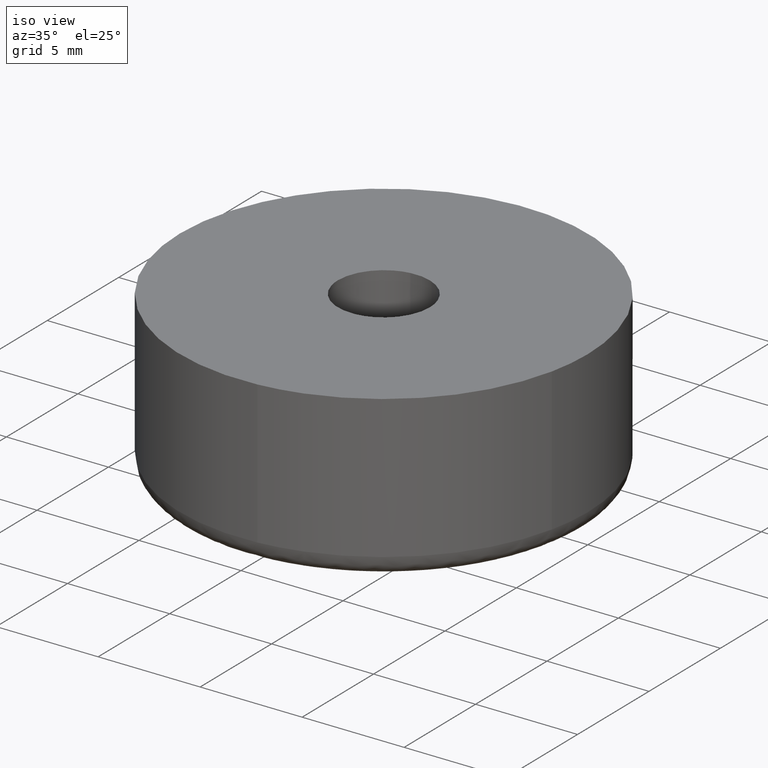
[diagram: clean part render]
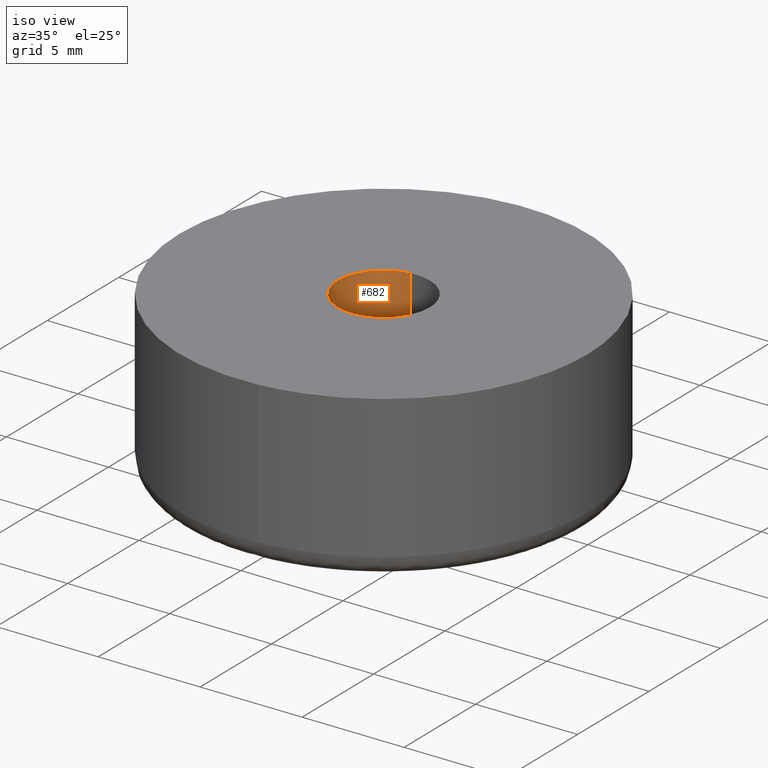
[diagram: same view with one face highlighted and labeled with its STEP entity id]
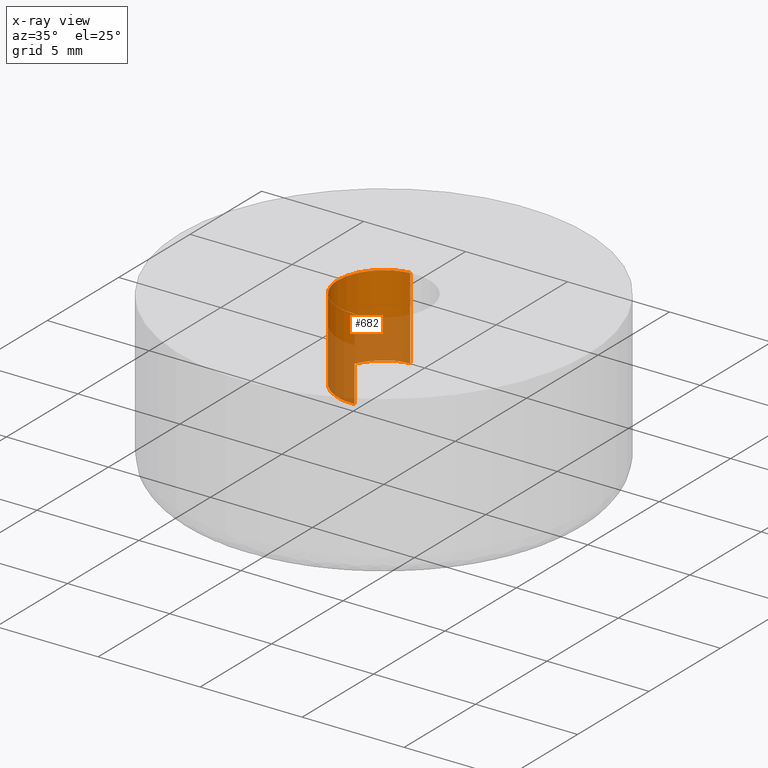
[diagram: x-ray of the same camera — body ghosted, the highlighted face saturated]
A machine part, iso view. The second image highlights one B-rep face of the part: STEP entity #682.
The next image is the same camera in x-ray: the body ghosted, the highlighted face saturated — about 50% of this face is hidden behind the body in this view.
In plain terms, the highlighted face is a freeform B-spline surface patch.
Its self-contained STEP definition (entity closure, byte-faithful):
#515=CARTESIAN_POINT('',(-0.265572896532508,2.234271925395390,3.999999999999945));
#516=VERTEX_POINT('',#515);
#534=CARTESIAN_POINT('',(0.137359213972935,-2.245803296448007,3.999999999999901));
#535=VERTEX_POINT('',#534);
#549=CARTESIAN_POINT('',(0.137359213972935,-2.245803296448007,7.999999999999899));
#550=VERTEX_POINT('',#549);
#551=CARTESIAN_POINT('',(0.137359213972935,-2.245803296448007,7.999999999999899));
#552=CARTESIAN_POINT('',(0.137359213972935,-2.245803296448007,3.999999999999901));
#553=QUASI_UNIFORM_CURVE('',1,(#551,#552),.UNSPECIFIED.,.F.,.U.);
#554=EDGE_CURVE('',#550,#535,#553,.T.);
#571=CARTESIAN_POINT('',(-0.265572947441810,2.234271919344237,7.999999999999899));
#572=VERTEX_POINT('',#571);
#588=CARTESIAN_POINT('',(-0.265572947441810,2.234271919344237,7.999999999999899));
#589=CARTESIAN_POINT('',(-0.265572896532508,2.234271925395390,3.999999999999945));
#590=QUASI_UNIFORM_CURVE('',1,(#588,#589),.UNSPECIFIED.,.F.,.U.);
#591=EDGE_CURVE('',#572,#516,#590,.T.);
#596=CARTESIAN_POINT('',(0.168306818038514,-2.243910459895977,8.099999999999902));
#597=CARTESIAN_POINT('',(0.152877304183671,-2.244854169390986,8.099999999999900));
#598=CARTESIAN_POINT('',(-2.108444082495772,-2.383162510402629,8.099999999999900));
#599=CARTESIAN_POINT('',(-2.245803296449200,-0.137359213953428,8.099999999999900));
#600=CARTESIAN_POINT('',(-2.375518942648186,1.983472854388877,8.099999999999900));
#601=CARTESIAN_POINT('',(-0.249778640438207,2.236149312155801,8.099999999999900));
#602=CARTESIAN_POINT('',(-0.234065163725353,2.238017097054492,8.099999999999900));
#603=CARTESIAN_POINT('',(0.168306818038514,-2.243910459895977,3.897499999999901));
#604=CARTESIAN_POINT('',(0.152877304183671,-2.244854169390986,3.897499999999901));
#605=CARTESIAN_POINT('',(-2.108444082495772,-2.383162510402629,3.897499999999901));
#606=CARTESIAN_POINT('',(-2.245803296449200,-0.137359213953428,3.897499999999901));
#607=CARTESIAN_POINT('',(-2.375518942648186,1.983472854388877,3.897499999999900));
#608=CARTESIAN_POINT('',(-0.249778640438207,2.236149312155801,3.897499999999901));
#609=CARTESIAN_POINT('',(-0.234065163725353,2.238017097054492,3.897499999999901));
#617=(BOUNDED_SURFACE()B_SPLINE_SURFACE(2,1,((#596,#603),(#597,#604),(#598,#605),(#599,#606),(#600,#607),(#601,#608),(#602,#609)),.UNSPECIFIED.,.F.,.F.,.U.)B_SPLINE_SURFACE_WITH_KNOTS((3,1,2,1,3),(2,2),(0.0,0.036533659231314,3.764455720589168,7.343260899492709,7.379799323418520),(0.0,4.202500000000000),.UNSPECIFIED.)GEOMETRIC_REPRESENTATION_ITEM()RATIONAL_B_SPLINE_SURFACE(((1.005740710707560,1.005740710707560),(1.002870355353780,1.002870355353780),(0.707106781186548,0.707106781186548),(1.0,1.0),(0.718822509939086,0.718822509939086),(0.980146872122378,0.980146872122378),(0.982787943449630,0.982787943449630)))REPRESENTATION_ITEM('')SURFACE());
#618=CARTESIAN_POINT('',(-2.250000000000000,0.0,3.999999999999901));
#619=VERTEX_POINT('',#618);
#620=CARTESIAN_POINT('',(-2.250000000000000,0.0,3.999999999999901));
#621=CARTESIAN_POINT('',(-2.250000000000000,1.998396404682503,3.999999999999901));
#622=CARTESIAN_POINT('',(-0.265572896532508,2.234271925395390,3.999999999999945));
#630=(BOUNDED_CURVE()B_SPLINE_CURVE(2,(#620,#621,#622),.UNSPECIFIED.,.F.,.U.)B_SPLINE_CURVE_WITH_KNOTS((3,3),(0.0,0.229562786023662),.UNSPECIFIED.)CURVE()GEOMETRIC_REPRESENTATION_ITEM()RATIONAL_B_SPLINE_CURVE((1.0,0.731050466726983,0.956027366717305))REPRESENTATION_ITEM(''));
#631=EDGE_CURVE('',#619,#516,#630,.T.);
#632=ORIENTED_EDGE('',*,*,#631,.T.);
#633=ORIENTED_EDGE('',*,*,#591,.F.);
#634=CARTESIAN_POINT('',(-2.250000000000000,0.0,7.999999999999900));
#635=VERTEX_POINT('',#634);
#636=CARTESIAN_POINT('',(-2.250000000000000,0.0,7.999999999999900));
#637=CARTESIAN_POINT('',(-2.250000000000000,1.998396358827245,7.999999999999899));
#638=CARTESIAN_POINT('',(-0.265572947441810,2.234271919344238,7.999999999999899));
#646=(BOUNDED_CURVE()B_SPLINE_CURVE(2,(#636,#637,#638),.UNSPECIFIED.,.F.,.U.)B_SPLINE_CURVE_WITH_KNOTS((3,3),(0.0,0.229562782172814),.UNSPECIFIED.)CURVE()GEOMETRIC_REPRESENTATION_ITEM()RATIONAL_B_SPLINE_CURVE((1.0,0.731050471238532,0.956027359169463))REPRESENTATION_ITEM(''));
#647=EDGE_CURVE('',#635,#572,#646,.T.);
#648=ORIENTED_EDGE('',*,*,#647,.F.);
#649=CARTESIAN_POINT('',(0.137359213972935,-2.245803296448008,7.999999999999900));
#650=CARTESIAN_POINT('',(0.068743717441387,-2.250000000000000,7.999999999999901));
#651=CARTESIAN_POINT('',(0.0,-2.250000000000000,7.999999999999900));
#652=CARTESIAN_POINT('',(-2.250000000000000,-2.250000000000000,7.999999999999900));
#653=CARTESIAN_POINT('',(-2.250000000000000,0.0,7.999999999999900));
#661=(BOUNDED_CURVE()B_SPLINE_CURVE(2,(#649,#650,#651,#652,#653),.UNSPECIFIED.,.F.,.U.)B_SPLINE_CURVE_WITH_KNOTS((3,2,3),(0.739332962238971,0.750000000000000,1.0),.UNSPECIFIED.)CURVE()GEOMETRIC_REPRESENTATION_ITEM()RATIONAL_B_SPLINE_CURVE((0.976072041666778,0.987502787899870,1.0,0.707106781186547,1.0))REPRESENTATION_ITEM(''));
#662=EDGE_CURVE('',#550,#635,#661,.T.);
#663=ORIENTED_EDGE('',*,*,#662,.F.);
#664=ORIENTED_EDGE('',*,*,#554,.T.);
#665=CARTESIAN_POINT('',(0.137359213972935,-2.245803296448008,3.999999999999900));
#666=CARTESIAN_POINT('',(0.068743717441387,-2.250000000000000,3.999999999999900));
#667=CARTESIAN_POINT('',(0.0,-2.250000000000000,3.999999999999901));
#668=CARTESIAN_POINT('',(-2.250000000000000,-2.250000000000000,3.999999999999901));
#669=CARTESIAN_POINT('',(-2.250000000000000,0.0,3.999999999999901));
#677=(BOUNDED_CURVE()B_SPLINE_CURVE(2,(#665,#666,#667,#668,#669),.UNSPECIFIED.,.F.,.U.)B_SPLINE_CURVE_WITH_KNOTS((3,2,3),(0.739332962238971,0.750000000000000,1.0),.UNSPECIFIED.)CURVE()GEOMETRIC_REPRESENTATION_ITEM()RATIONAL_B_SPLINE_CURVE((0.976072041666778,0.987502787899870,1.0,0.707106781186547,1.0))REPRESENTATION_ITEM(''));
#678=EDGE_CURVE('',#535,#619,#677,.T.);
#679=ORIENTED_EDGE('',*,*,#678,.T.);
#680=EDGE_LOOP('',(#632,#633,#648,#663,#664,#679));
#681=FACE_OUTER_BOUND('',#680,.T.);
#682=ADVANCED_FACE('',(#681),#617,.F.);